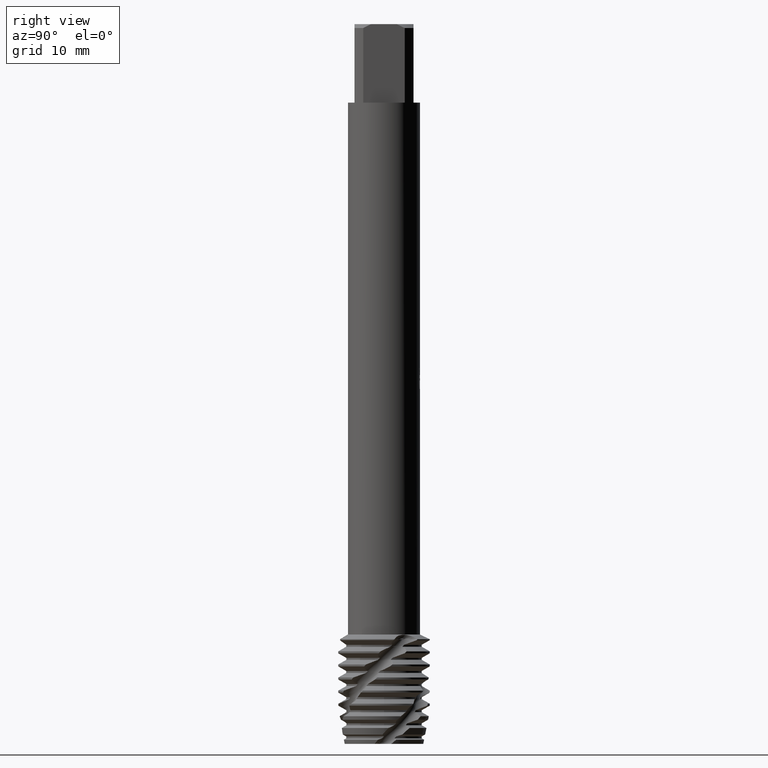
[diagram: clean part render]
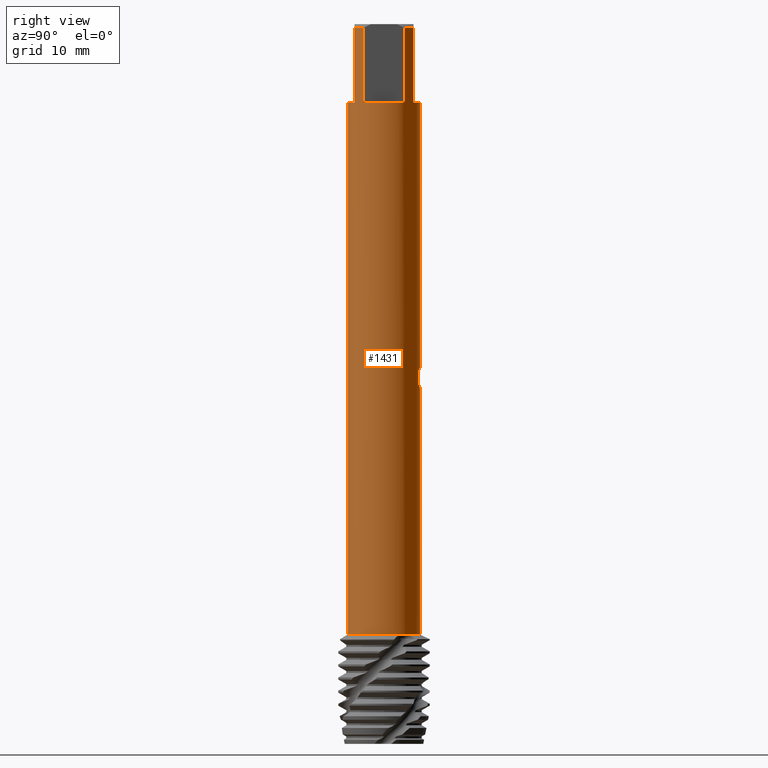
[diagram: same view with one face highlighted and labeled with its STEP entity id]
A machine part, right view. The second image highlights one B-rep face of the part: STEP entity #1431.
In plain terms, the highlighted cylindrical surface (edge-blend (fillet) strip) has radius 5.5 mm, axis along (-0, -0, 1).
Its self-contained STEP definition (entity closure, byte-faithful):
#1241=VERTEX_POINT('',#3552);
#1275=EDGE_CURVE('',#1905,#3269,#3588,.T.);
#1291=VERTEX_POINT('',#3607);
#1345=EDGE_CURVE('',#1291,#1241,#3667,.T.);
#1371=EDGE_CURVE('',#2513,#2829,#3693,.T.);
#1431=ADVANCED_FACE('',(#3761),#3762,.T.);
#1585=VERTEX_POINT('',#3929);
#1605=VERTEX_POINT('',#3951);
#1701=EDGE_CURVE('',#1605,#1803,#4061,.T.);
#1797=VERTEX_POINT('',#4167);
#1803=VERTEX_POINT('',#4174);
#1831=VERTEX_POINT('',#4205);
#1889=EDGE_CURVE('',#2295,#1831,#4266,.T.);
#1905=VERTEX_POINT('',#4282);
#1993=VERTEX_POINT('',#4377);
#2007=EDGE_CURVE('',#3303,#2305,#4391,.T.);
#2023=EDGE_CURVE('',#1585,#1291,#4408,.T.);
#2101=EDGE_CURVE('',#2469,#3293,#4495,.T.);
#2151=VERTEX_POINT('',#4549);
#2201=EDGE_CURVE('',#2829,#2469,#4606,.T.);
#2295=VERTEX_POINT('',#4712);
#2305=VERTEX_POINT('',#4722);
#2379=EDGE_CURVE('',#1993,#2513,#4803,.T.);
#2469=VERTEX_POINT('',#4900);
#2489=EDGE_CURVE('',#2305,#2295,#4922,.T.);
#2505=EDGE_CURVE('',#2151,#1905,#4938,.T.);
#2507=EDGE_CURVE('',#1803,#2151,#4940,.T.);
#2513=VERTEX_POINT('',#4946);
#2583=EDGE_CURVE('',#1797,#1605,#5023,.T.);
#2631=EDGE_CURVE('',#3269,#1585,#5075,.T.);
#2829=VERTEX_POINT('',#5293);
#2883=EDGE_CURVE('',#3303,#3209,#5350,.T.);
#2913=EDGE_CURVE('',#1241,#1831,#5384,.T.);
#3097=EDGE_CURVE('',#3293,#3223,#5585,.T.);
#3209=VERTEX_POINT('',#5706);
#3223=VERTEX_POINT('',#5720);
#3247=EDGE_CURVE('',#1797,#3223,#5747,.T.);
#3249=EDGE_CURVE('',#3209,#1993,#5749,.T.);
#3269=VERTEX_POINT('',#5771);
#3293=VERTEX_POINT('',#5796);
#3303=VERTEX_POINT('',#5806);
#3552=CARTESIAN_POINT('',(3.16227766016838,-4.5,-12.0));
#3588=CIRCLE('',#6211,5.5);
#3607=CARTESIAN_POINT('',(3.16227766016838,-4.5,-0.600000000000001));
#3667=LINE('',#6373,#6374);
#3693=B_SPLINE_CURVE_WITH_KNOTS('',3,(#6436,#6437,#6438,#6439,#6440,#6441,#6442,#6443,#6444,#6445),.UNSPECIFIED.,.F.,.F.,(4,2,2,2,4),(8.84376832230327,9.18357174425148,9.52337516619968,9.86352995704214,10.2036847478846),.UNSPECIFIED.);
#3761=FACE_OUTER_BOUND('',#6653,.T.);
#3762=CYLINDRICAL_SURFACE('',#6654,5.5);
#3929=CARTESIAN_POINT('',(4.5,-3.16227766016838,-0.600000000000001));
#3951=CARTESIAN_POINT('',(3.16227766016838,4.5,-12.0));
#4061=LINE('',#7573,#7574);
#4167=CARTESIAN_POINT('',(-6.73533494602307E-016,5.5,-12.0));
#4174=CARTESIAN_POINT('',(3.16227766016838,4.5,-0.600000000000001));
#4205=CARTESIAN_POINT('',(6.73533494602307E-016,-5.5,-12.0));
#4266=LINE('',#8075,#8076);
#4282=CARTESIAN_POINT('',(4.5,3.16227766016838,-12.0));
#4377=CARTESIAN_POINT('',(0.960916859934852,5.41540753667653,-53.95188247557));
#4391=LINE('',#8397,#8398);
#4408=CIRCLE('',#8437,5.5);
#4495=B_SPLINE_CURVE_WITH_KNOTS('',3,(#8589,#8590,#8591,#8592,#8593,#8594,#8595,#8596,#8597,#8598),.UNSPECIFIED.,.F.,.F.,(4,2,2,2,4),(0.680309605325681,1.02046440798852,1.36061921065136,1.70042264406997,2.04022607748859),.UNSPECIFIED.);
#4549=CARTESIAN_POINT('',(4.5,3.16227766016838,-0.600000000000001));
#4606=LINE('',#8840,#8841);
#4712=CARTESIAN_POINT('',(6.73533494602307E-016,-5.5,-93.278312163513));
#4722=CARTESIAN_POINT('',(0.0,5.5,-93.278312163513));
#4803=LINE('',#9330,#9331);
#4900=CARTESIAN_POINT('',(1.47093107166124,5.29965676081211,-53.0665532801303));
#4922=CIRCLE('',#10065,5.5);
#4938=LINE('',#10102,#10103);
#4940=CIRCLE('',#10106,5.5);
#4946=CARTESIAN_POINT('',(0.960916859934851,5.41540753667653,-55.5346086970684));
#5023=CIRCLE('',#10358,5.5);
#5075=LINE('',#10451,#10452);
#5293=CARTESIAN_POINT('',(1.47093107166124,5.29965676081211,-55.0191822703583));
#5350=B_SPLINE_CURVE_WITH_KNOTS('',3,(#11357,#11358,#11359,#11360,#11361,#11362,#11363,#11364,#11365,#11366,#11367,#11368,#11369,#11370,#11371,#11372),.UNSPECIFIED.,.F.,.F.,(4,2,2,2,2,2,2,4),(6.46269321319695,6.80292505982676,7.14323435893283,7.48354365803889,7.82385295714496,8.16416225625103,8.50396570883123,8.84376916141143),.UNSPECIFIED.);
#5384=CIRCLE('',#11440,5.5);
#5585=B_SPLINE_CURVE_WITH_KNOTS('',3,(#12030,#12031,#12032,#12033,#12034,#12035,#12036,#12037,#12038,#12039,#12040,#12041,#12042,#12043,#12044,#12045,#12046,#12047,#12048,#12049,#12050,#12051,#12052,#12053,#12054,#12055,#12056),.UNSPECIFIED.,.F.,.F.,(4,2,3,2,2,2,2,2,2,2,2,2,4),(-0.59673471528191,-0.298367357640955,0.0,0.298367357640955,0.596734715281909,0.895728696430637,1.19472267757937,1.49266530561273,1.79060793364609,2.0888607706829,2.38711360771972,2.68536644475654,2.98361928179335),.UNSPECIFIED.);
#5706=CARTESIAN_POINT('',(0.319113439739413,5.4907346150199,-55.7998161889251));
#5720=CARTESIAN_POINT('',(-1.13102738707881E-014,5.49999999999999,-53.6255956929517));
#5747=LINE('',#12719,#12720);
#5749=ELLIPSE('',#12723,16.7639701535338,5.5);
#5771=CARTESIAN_POINT('',(4.5,-3.16227766016838,-12.0));
#5796=CARTESIAN_POINT('',(0.8793748990228,5.42924486341965,-52.5000003045603));
#5806=CARTESIAN_POINT('',(4.95714743233856E-015,5.5,-55.8341278961137));
#6211=AXIS2_PLACEMENT_3D('',#13399,#13400,#13401);
#6373=CARTESIAN_POINT('',(3.16227766016838,-4.5,-6.3));
#6374=VECTOR('',#13498,1.0);
#6436=CARTESIAN_POINT('',(0.656410202921829,5.4606891181883,-55.697188895712));
#6437=CARTESIAN_POINT('',(0.76663445757459,5.44743944885365,-55.6513748150645));
#6438=CARTESIAN_POINT('',(0.872112646224629,5.43131792776591,-55.5944501115829));
#6439=CARTESIAN_POINT('',(1.06695137205739,5.39642563832411,-55.4632358460566));
#6440=CARTESIAN_POINT('',(1.15631135431157,5.37768790332073,-55.3889366780832));
#6441=CARTESIAN_POINT('',(1.31451971938408,5.34122033456893,-55.2307858225352));
#6442=CARTESIAN_POINT('',(1.38888636168117,5.32218275784726,-55.1413883225349));
#6443=CARTESIAN_POINT('',(1.52019496117986,5.28617460118723,-54.9465084756402));
#6444=CARTESIAN_POINT('',(1.57714806622053,5.26924149174496,-54.8410267185747));
#6445=CARTESIAN_POINT('',(1.62299097025556,5.25508328292416,-54.7307922812186));
#6653=EDGE_LOOP('',(#13602,#13603,#13604,#13605,#13606,#13607,#13608,#13609,#13610,#13611,#13612,#13613,#13614,#13615,#13616,#13617,#13618,#13619,#13620,#13621));
#6654=AXIS2_PLACEMENT_3D('',#13622,#13623,#13624);
#7573=CARTESIAN_POINT('',(3.16227766016838,4.5,-6.3));
#7574=VECTOR('',#13945,1.0);
#8075=CARTESIAN_POINT('',(6.73533494602307E-016,-5.5,-76.6391560817565));
#8076=VECTOR('',#14136,1.0);
#8397=CARTESIAN_POINT('',(-6.73533494602307E-016,5.5,-76.6391560817565));
#8398=VECTOR('',#14234,1.0);
#8437=AXIS2_PLACEMENT_3D('',#14248,#14249,#14250);
#8589=CARTESIAN_POINT('',(1.62299097905454,5.25508328020666,-53.3549432845959));
#8590=CARTESIAN_POINT('',(1.57714807341736,5.26924148960635,-53.2447088434292));
#8591=CARTESIAN_POINT('',(1.52019496638751,5.28617459972041,-53.1392270827205));
#8592=CARTESIAN_POINT('',(1.38888636229675,5.3221827577172,-52.9443472290937));
#8593=CARTESIAN_POINT('',(1.31451971739617,5.3412203351013,-52.8549497260047));
#8594=CARTESIAN_POINT('',(1.15631134684466,5.3776879049678,-52.6967988650683));
#8595=CARTESIAN_POINT('',(1.06695136153801,5.39642564046512,-52.6224996945918));
#8596=CARTESIAN_POINT('',(0.872112629049404,5.43131793058454,-52.4912854246421));
#8597=CARTESIAN_POINT('',(0.766634436795852,5.44743945185387,-52.4343607192401));
#8598=CARTESIAN_POINT('',(0.65641017838285,5.46068912113804,-52.3885466370495));
#8840=CARTESIAN_POINT('',(1.47093107166124,5.29965676081211,-54.0428677752443));
#8841=VECTOR('',#14493,1.0);
#9330=CARTESIAN_POINT('',(0.960916859934852,5.41540753667653,-54.7432455863192));
#9331=VECTOR('',#14724,1.0);
#10065=AXIS2_PLACEMENT_3D('',#14957,#14958,#14959);
#10102=CARTESIAN_POINT('',(4.5,3.16227766016838,-6.3));
#10103=VECTOR('',#14966,1.0);
#10106=AXIS2_PLACEMENT_3D('',#14967,#14968,#14969);
#10358=AXIS2_PLACEMENT_3D('',#15049,#15050,#15051);
#10451=CARTESIAN_POINT('',(4.5,-3.16227766016838,-6.3));
#10452=VECTOR('',#15100,1.0);
#11357=CARTESIAN_POINT('',(-1.51711588526455,5.28662079126903,-55.0436844681823));
#11358=CARTESIAN_POINT('',(-1.45153273511935,5.30544136544152,-55.1410561757357));
#11359=CARTESIAN_POINT('',(-1.37726252592725,5.32538832249128,-55.2303819965014));
#11360=CARTESIAN_POINT('',(-1.21920144728049,5.3637825918583,-55.388502706548));
#11361=CARTESIAN_POINT('',(-1.12986767318106,5.38360779967468,-55.4628354749158));
#11362=CARTESIAN_POINT('',(-0.935061495936943,5.42083885559304,-55.5941298950457));
#11363=CARTESIAN_POINT('',(-0.829589406848799,5.43821174564872,-55.6511013564203));
#11364=CARTESIAN_POINT('',(-0.609098599758938,5.46729955917523,-55.7428310112361));
#11365=CARTESIAN_POINT('',(-0.493889792656154,5.47901630031906,-55.7776616425182));
#11366=CARTESIAN_POINT('',(-0.261658565917761,5.4950051447965,-55.8234523084837));
#11367=CARTESIAN_POINT('',(-0.144632994307208,5.49926805323195,-55.8343995668595));
#11368=CARTESIAN_POINT('',(0.0820676089502035,5.50055401810113,-55.8343995668595));
#11369=CARTESIAN_POINT('',(0.198966907076402,5.4976285055809,-55.8234842440393));
#11370=CARTESIAN_POINT('',(0.431024756882665,5.48431624493311,-55.7777800964683));
#11371=CARTESIAN_POINT('',(0.546186239753288,5.47393875864273,-55.74300345815));
#11372=CARTESIAN_POINT('',(0.656410503657635,5.4606890820379,-55.6971893734686));
#11440=AXIS2_PLACEMENT_3D('',#15419,#15420,#15421);
#12030=CARTESIAN_POINT('',(0.731635047100288,5.45112008286871,-52.2949559803226));
#12031=CARTESIAN_POINT('',(0.801608716650053,5.44172840038171,-52.365005500056));
#12032=CARTESIAN_POINT('',(0.862360582713813,5.43212722885907,-52.4537379639577));
#12033=CARTESIAN_POINT('',(0.943032126809186,5.41870486662565,-52.6484025590637));
#12034=CARTESIAN_POINT('',(0.962941079307423,5.41504796634178,-52.7543504279651));
#12035=CARTESIAN_POINT('',(0.962941079307423,5.41504796634178,-52.8538062138455));
#12036=CARTESIAN_POINT('',(0.962941079307423,5.41504796634178,-52.9532619997258));
#12037=CARTESIAN_POINT('',(0.943032126809186,5.41870486662565,-53.0592098686272));
#12038=CARTESIAN_POINT('',(0.862360582713813,5.43212722885907,-53.2538744637332));
#12039=CARTESIAN_POINT('',(0.801608716650054,5.44172840038171,-53.342606927635));
#12040=CARTESIAN_POINT('',(0.661514420636027,5.46053148952752,-53.4828530833148));
#12041=CARTESIAN_POINT('',(0.572705316827109,5.4709753949192,-53.5437408129201));
#12042=CARTESIAN_POINT('',(0.377854204728945,5.48787657944286,-53.6246037127661));
#12043=CARTESIAN_POINT('',(0.271794841810208,5.49418425323492,-53.6445682630522));
#12044=CARTESIAN_POINT('',(0.0729134976630152,5.50041334210769,-53.6445682630522));
#12045=CARTESIAN_POINT('',(-0.0329838689481102,5.50076363273605,-53.624729139216));
#12046=CARTESIAN_POINT('',(-0.227746782153928,5.49614591165759,-53.5440766792741));
#12047=CARTESIAN_POINT('',(-0.31661756494943,5.49132958536069,-53.4832673745375));
#12048=CARTESIAN_POINT('',(-0.457016394582919,5.48143171259988,-53.3429657790205));
#12049=CARTESIAN_POINT('',(-0.51790518390877,5.47571207998014,-53.2540726743729));
#12050=CARTESIAN_POINT('',(-0.598690854039744,5.46746905203251,-53.0592059955348));
#12051=CARTESIAN_POINT('',(-0.618583019105971,5.46510338863536,-52.9532238261911));
#12052=CARTESIAN_POINT('',(-0.618583019105971,5.46510338863536,-52.7543886014999));
#12053=CARTESIAN_POINT('',(-0.598690854039748,5.46746905203251,-52.6484064321561));
#12054=CARTESIAN_POINT('',(-0.517905183908776,5.47571207998014,-52.453539753318));
#12055=CARTESIAN_POINT('',(-0.45701639458292,5.48143171259988,-52.3646466486704));
#12056=CARTESIAN_POINT('',(-0.386780454009451,5.48638322398247,-52.2944593504513));
#12719=CARTESIAN_POINT('',(-6.73533494602307E-016,5.5,-76.6391560817565));
#12720=VECTOR('',#15826,1.0);
#12723=AXIS2_PLACEMENT_3D('',#15827,#15828,#15829);
#13399=CARTESIAN_POINT('',(0.0,0.0,-12.0));
#13400=DIRECTION('',(0.0,0.0,-1.0));
#13401=DIRECTION('',(0.0,1.0,0.0));
#13498=DIRECTION('',(0.0,0.0,-1.0));
#13602=ORIENTED_EDGE('',*,*,#3247,.F.);
#13603=ORIENTED_EDGE('',*,*,#2583,.T.);
#13604=ORIENTED_EDGE('',*,*,#1701,.T.);
#13605=ORIENTED_EDGE('',*,*,#2507,.T.);
#13606=ORIENTED_EDGE('',*,*,#2505,.T.);
#13607=ORIENTED_EDGE('',*,*,#1275,.T.);
#13608=ORIENTED_EDGE('',*,*,#2631,.T.);
#13609=ORIENTED_EDGE('',*,*,#2023,.T.);
#13610=ORIENTED_EDGE('',*,*,#1345,.T.);
#13611=ORIENTED_EDGE('',*,*,#2913,.T.);
#13612=ORIENTED_EDGE('',*,*,#1889,.F.);
#13613=ORIENTED_EDGE('',*,*,#2489,.F.);
#13614=ORIENTED_EDGE('',*,*,#2007,.F.);
#13615=ORIENTED_EDGE('',*,*,#2883,.T.);
#13616=ORIENTED_EDGE('',*,*,#3249,.T.);
#13617=ORIENTED_EDGE('',*,*,#2379,.T.);
#13618=ORIENTED_EDGE('',*,*,#1371,.T.);
#13619=ORIENTED_EDGE('',*,*,#2201,.T.);
#13620=ORIENTED_EDGE('',*,*,#2101,.T.);
#13621=ORIENTED_EDGE('',*,*,#3097,.T.);
#13622=CARTESIAN_POINT('',(0.0,0.0,-76.6391560817565));
#13623=DIRECTION('',(-0.0,-0.0,1.0));
#13624=DIRECTION('',(0.0,1.0,0.0));
#13945=DIRECTION('',(-0.0,-0.0,1.0));
#14136=DIRECTION('',(-0.0,-0.0,1.0));
#14234=DIRECTION('',(0.0,0.0,-1.0));
#14248=CARTESIAN_POINT('',(0.0,0.0,-0.600000000000001));
#14249=DIRECTION('',(0.0,0.0,-1.0));
#14250=DIRECTION('',(0.0,1.0,0.0));
#14493=DIRECTION('',(-0.0,-0.0,1.0));
#14724=DIRECTION('',(0.0,0.0,-1.0));
#14957=CARTESIAN_POINT('',(0.0,0.0,-93.278312163513));
#14958=DIRECTION('',(0.0,0.0,-1.0));
#14959=DIRECTION('',(0.0,1.0,0.0));
#14966=DIRECTION('',(0.0,0.0,-1.0));
#14967=CARTESIAN_POINT('',(0.0,0.0,-0.600000000000001));
#14968=DIRECTION('',(0.0,0.0,-1.0));
#14969=DIRECTION('',(0.0,1.0,0.0));
#15049=CARTESIAN_POINT('',(0.0,0.0,-12.0));
#15050=DIRECTION('',(0.0,0.0,-1.0));
#15051=DIRECTION('',(0.0,1.0,0.0));
#15100=DIRECTION('',(-0.0,-0.0,1.0));
#15419=CARTESIAN_POINT('',(0.0,0.0,-12.0));
#15420=DIRECTION('',(0.0,0.0,-1.0));
#15421=DIRECTION('',(0.0,1.0,0.0));
#15826=DIRECTION('',(0.0,0.0,-1.0));
#15827=CARTESIAN_POINT('',(0.0,0.0,-56.7186341090595));
#15828=DIRECTION('',(0.944648353914092,0.0,-0.328084573619969));
#15829=DIRECTION('',(0.328084573619969,-0.0,0.944648353914092));